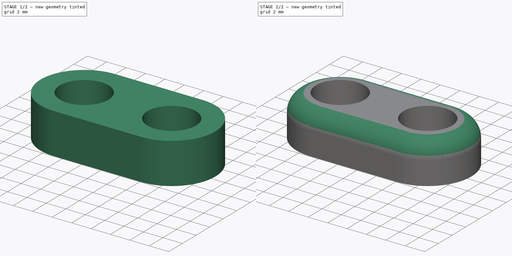
[diagram: build sequence overview — one tinted view per stage of 2, left to right]
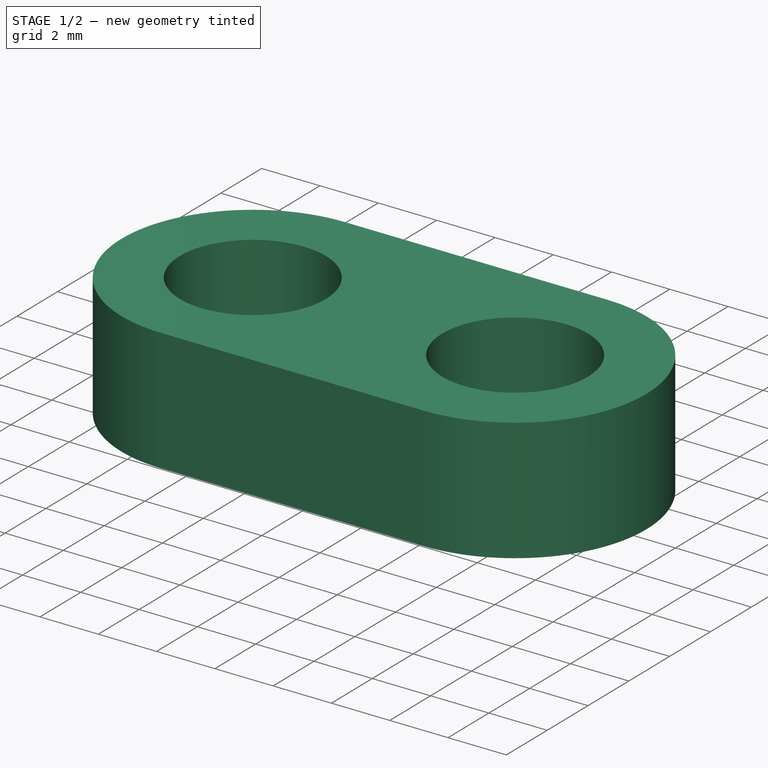
[diagram: stage 1 of 2 — iso view after this stage's code; geometry added in this stage tinted green]
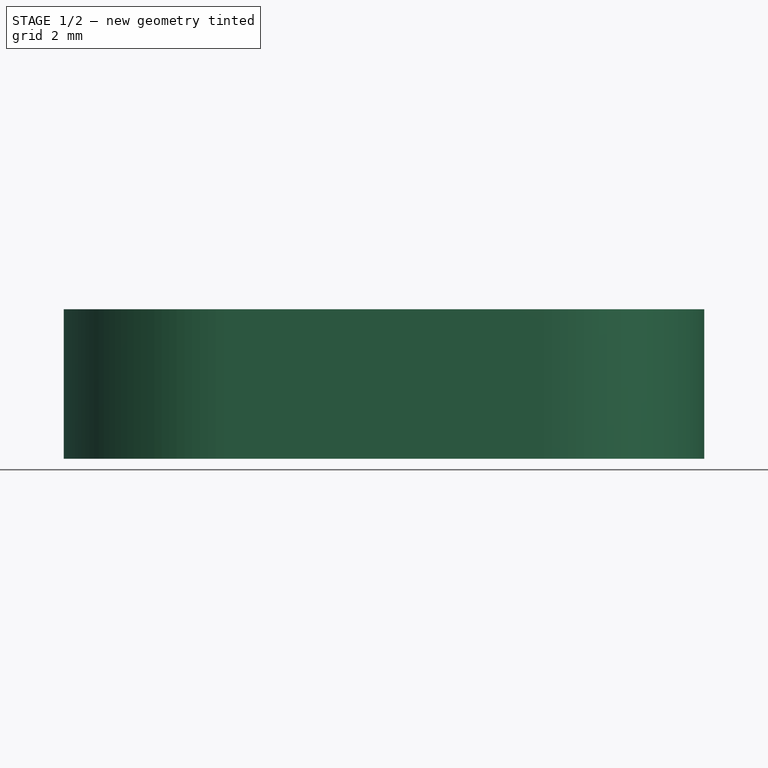
[diagram: stage 1 of 2 — front view after this stage's code; geometry added in this stage tinted green]
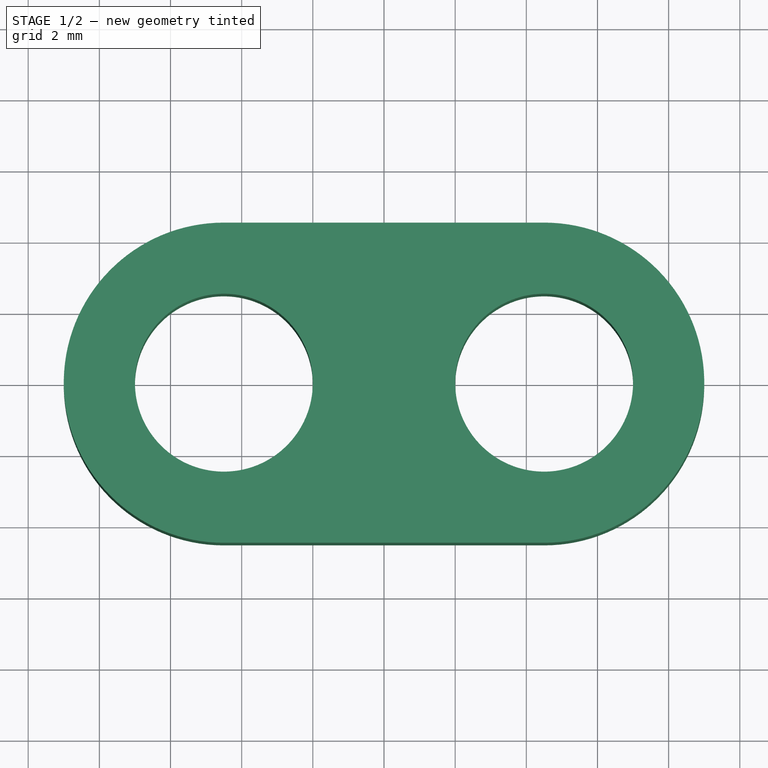
[diagram: stage 1 of 2 — top view after this stage's code; geometry added in this stage tinted green]
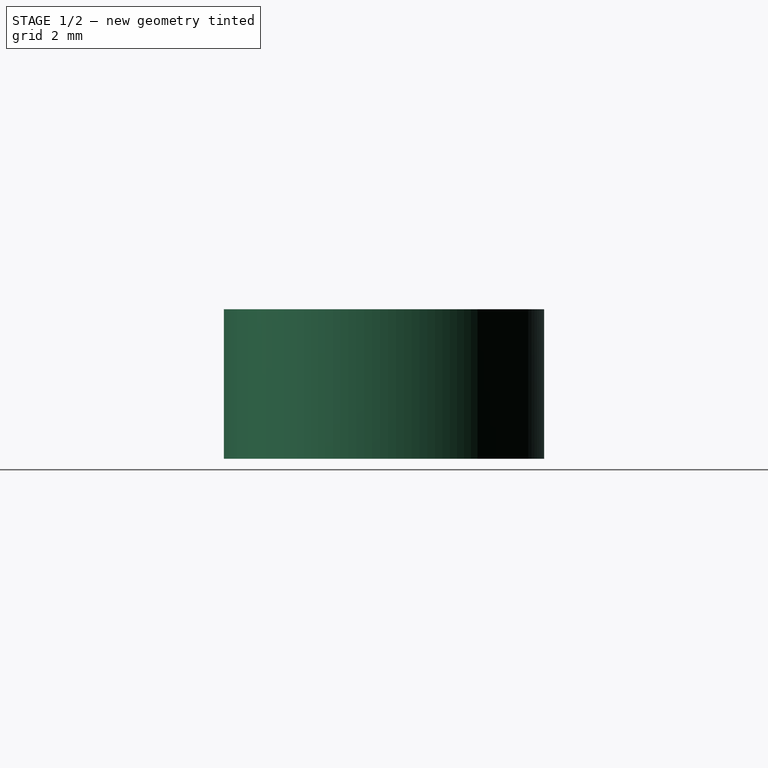
[diagram: stage 1 of 2 — right view after this stage's code; geometry added in this stage tinted green]
FCSTD DOCUMENT  (FreeCAD 1.0R39319 (Git))
Label: Clip
License: All rights reserved
LicenseURL: https://en.wikipedia.org/wiki/All_rights_reserved
objects: Sketcher::SketchObject×1, App::VarSet×1, PartDesign::Pad×1, PartDesign::Fillet×1, PartDesign::Body×1
note: 9 computed .brp shape members not serialized (recipe doc carries the construction recipe); baked Part::Feature solids carry a one-line shape summary decoded from their .brp

FEATURE [Sketcher::SketchObject] Sketch
  ArcFitTolerance = 1e-06
  AttachmentSupport = -> [XY_Plane]
  FullyConstrained = true
  MakeInternals = false
  MapMode = 5
  expr: Constraints[20] = VarSet.ClipWidth
  expr: Constraints[5] = VarSet.HoleDistance
  expr: Constraints[6] = VarSet.M3HeatInsert5x4_Diameter
  sketch-geometry (8):
    g0: Circle CenterX=-4.5 CenterY=0 CenterZ=0 NormalX=0 NormalY=0 NormalZ=1 AngleXU=0 Radius=2.5
    g1: Circle CenterX=4.5 CenterY=0 CenterZ=0 NormalX=0 NormalY=0 NormalZ=1 AngleXU=0 Radius=2.5
    g2: LineSegment [constr] StartX=-4.5 StartY=0 StartZ=0 EndX=4.5 EndY=0 EndZ=0
    g3: ArcOfCircle CenterX=-4.5 CenterY=0 CenterZ=0 NormalX=0 NormalY=0 NormalZ=1 AngleXU=0 Radius=4.5 StartAngle=1.5708 EndAngle=4.7124
    g4: LineSegment StartX=-4.5 StartY=4.5 StartZ=0 EndX=4.49997 EndY=4.5 EndZ=0
    g5: ArcOfCircle CenterX=4.5 CenterY=0 CenterZ=0 NormalX=0 NormalY=0 NormalZ=1 AngleXU=0 Radius=4.5 StartAngle=4.71239 EndAngle=7.85399
    g6: LineSegment StartX=-4.49997 StartY=-4.5 StartZ=0 EndX=4.5 EndY=-4.5 EndZ=0
    g7: LineSegment [constr] StartX=-9 StartY=0 StartZ=0 EndX=9 EndY=0 EndZ=0
  constraints (21):
    c: PointOnObject(g0,g-1)
    c: Equal(g0,g1)
    c: Coincident(g2,g0)
    c: Coincident(g2,g1)
    c: Symmetric(g1,g0,g-1)
    c: Distance(g2) = 9
    c: Diameter(g1) = 5
    c: Coincident(g3,g0)
    c: Horizontal(g4)
    c: Tangent(g4,g3) = 1.5708
    c: Coincident(g5,g1)
    c: Equal(g3,g5)
    c: Coincident(g5,g4)
    c: Coincident(g6,g3)
    c: Horizontal(g6)
    c: Tangent(g6,g5) = -1.5708
    c: PointOnObject(g7,g3)
    c: Horizontal(g7)
    c: PointOnObject(g7,g-1)
    c: PointOnObject(g7,g5)
    c: Distance(g7) = 18
FEATURE [App::VarSet] VarSet
  ClipWidth = 18
  HoleDistance = 9
  M3HeatInsert5x4_Diameter = 5
  M3HeatInsert5x4_Height = 4.2
FEATURE [PartDesign::Pad] Pad  label="Clip"
  Direction = (0,0,1)
  Length = 4.2
  Length2 = 10
  Profile = -> Sketch
  ReferenceAxis = -> Sketch [N_Axis]
  Refine = true
  Suppressed = false
  Type = 0
  expr: Length = VarSet.M3HeatInsert5x4_Height
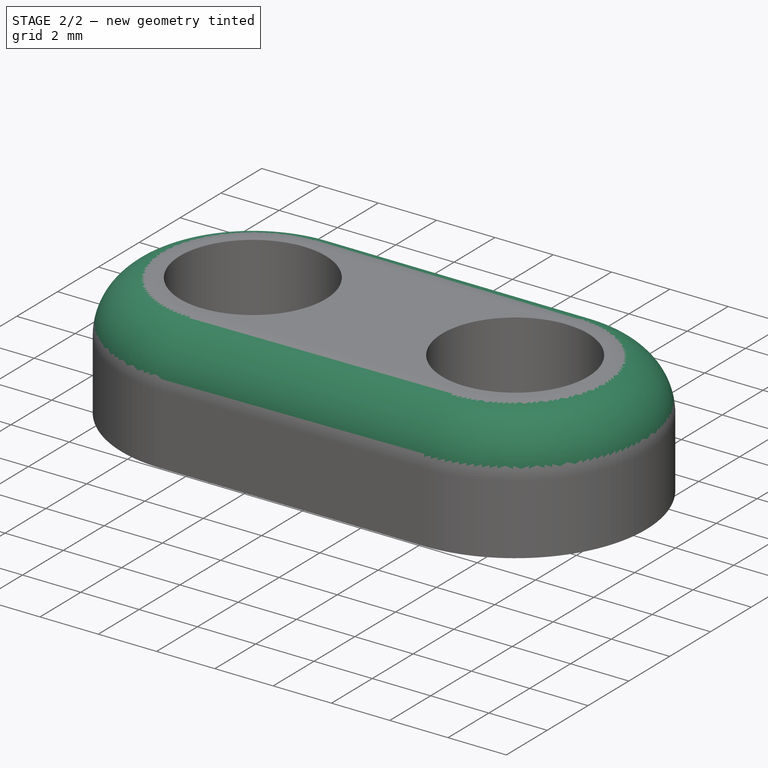
[diagram: stage 2 of 2 — iso view after this stage's code; geometry added in this stage tinted green]
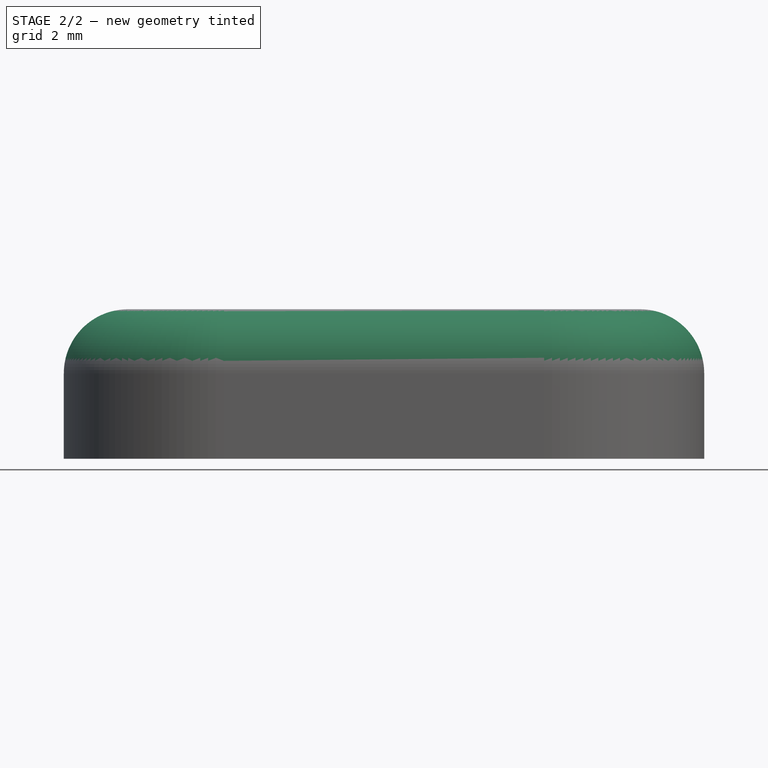
[diagram: stage 2 of 2 — front view after this stage's code; geometry added in this stage tinted green]
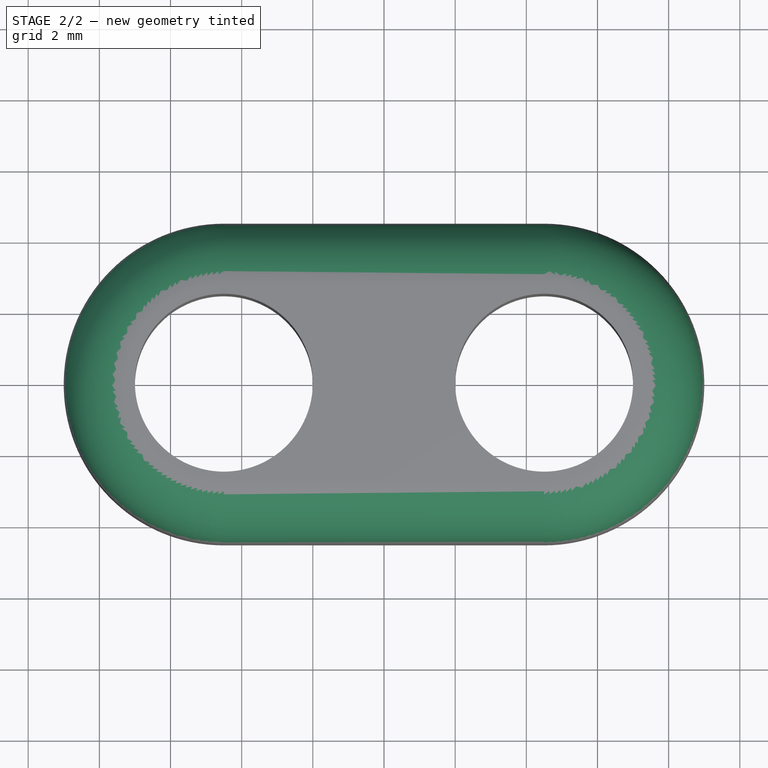
[diagram: stage 2 of 2 — top view after this stage's code; geometry added in this stage tinted green]
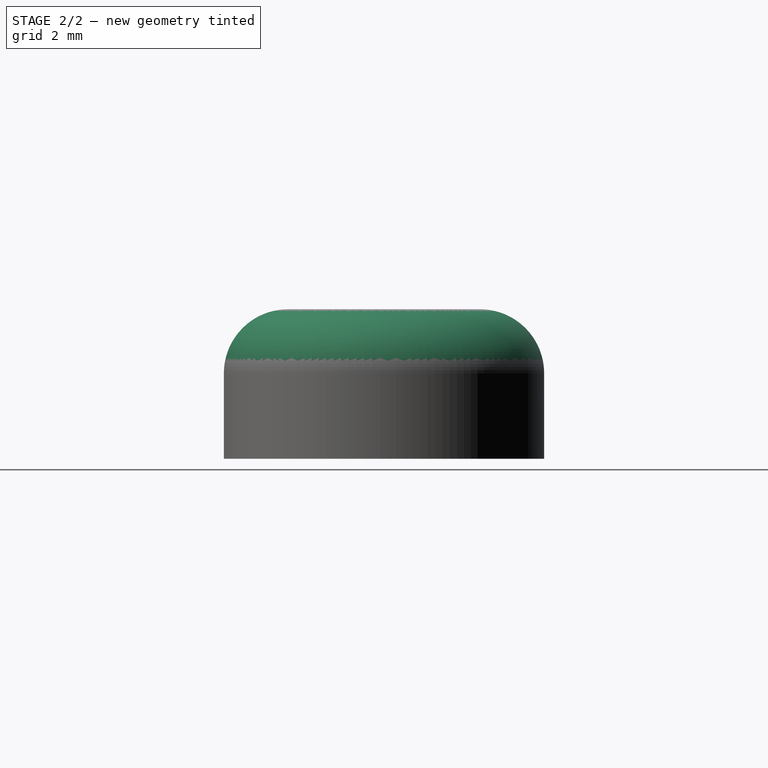
[diagram: stage 2 of 2 — right view after this stage's code; geometry added in this stage tinted green]
FEATURE [PartDesign::Fillet] Fillet  label="Rounding"
  Base = -> Pad [Edge10]
  BaseFeature = -> Pad
  Radius = 1.8
  Refine = true
  SupportTransform = false
  Suppressed = false
  UseAllEdges = false
FEATURE [PartDesign::Body] Body
  AllowCompound = false
  Group = -> [Sketch,Pad,Fillet]
  Origin = -> Origin
  Tip = -> Fillet
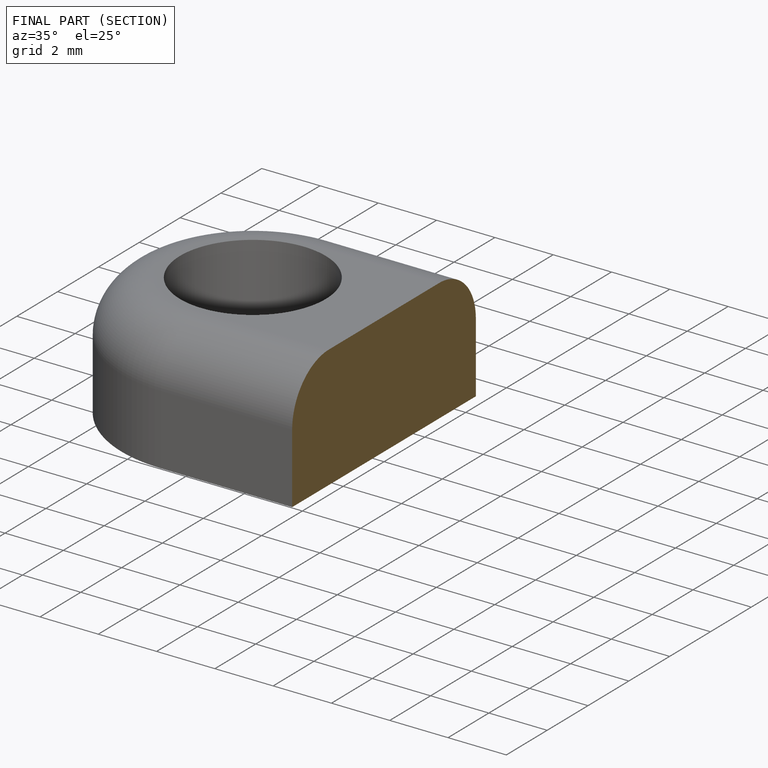
[diagram: finished part — half-section view (interior)]
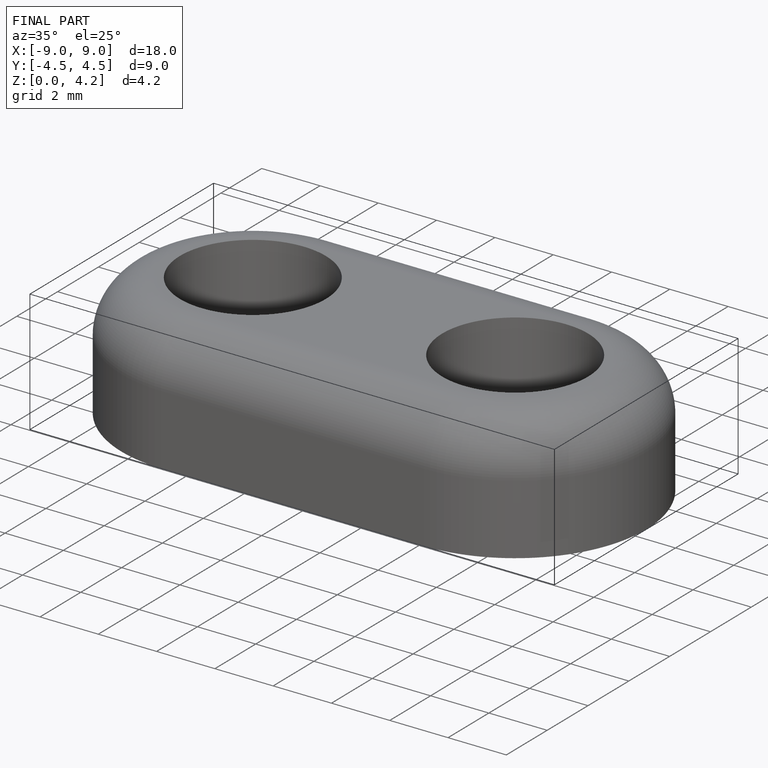
[diagram: finished part — iso view with bounding-box wireframe]
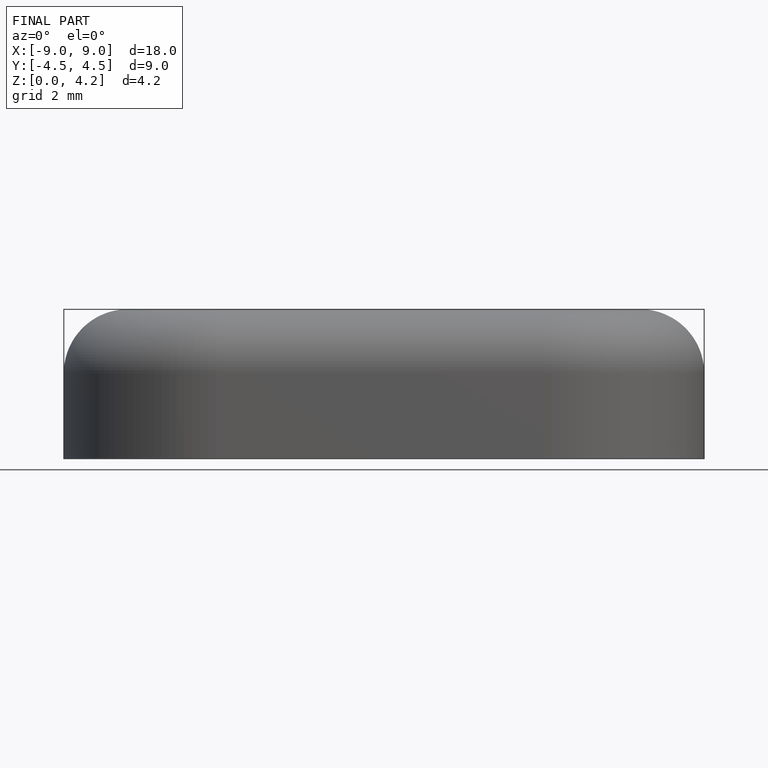
[diagram: finished part — front view with bounding-box wireframe]
